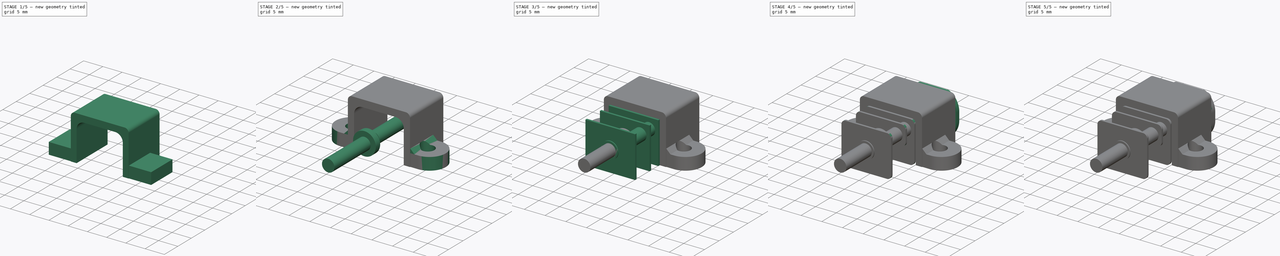
[diagram: build sequence overview — one tinted view per stage of 5, left to right]
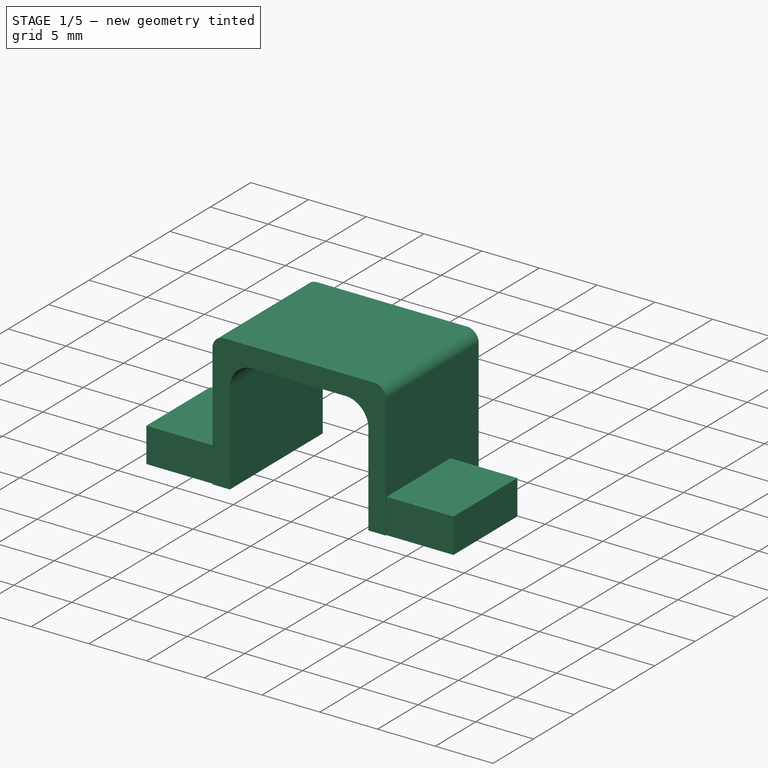
[diagram: stage 1 of 5 — iso view after this stage's code; geometry added in this stage tinted green]
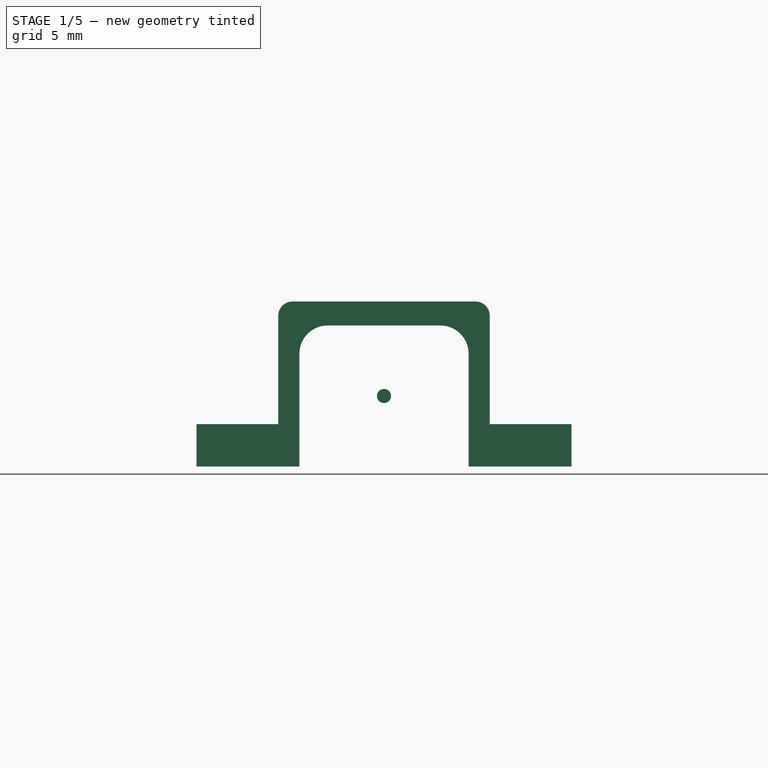
[diagram: stage 1 of 5 — front view after this stage's code; geometry added in this stage tinted green]
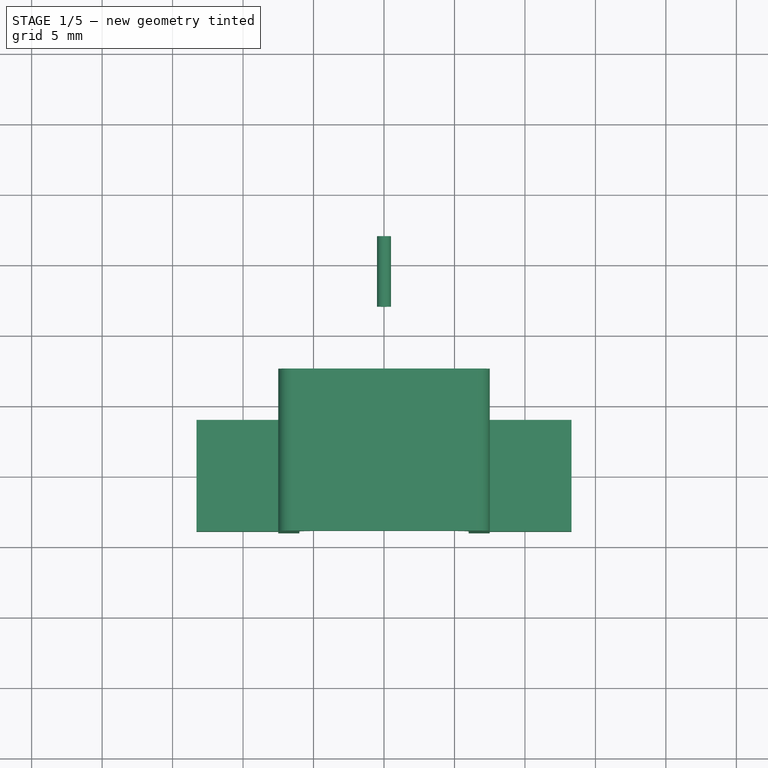
[diagram: stage 1 of 5 — top view after this stage's code; geometry added in this stage tinted green]
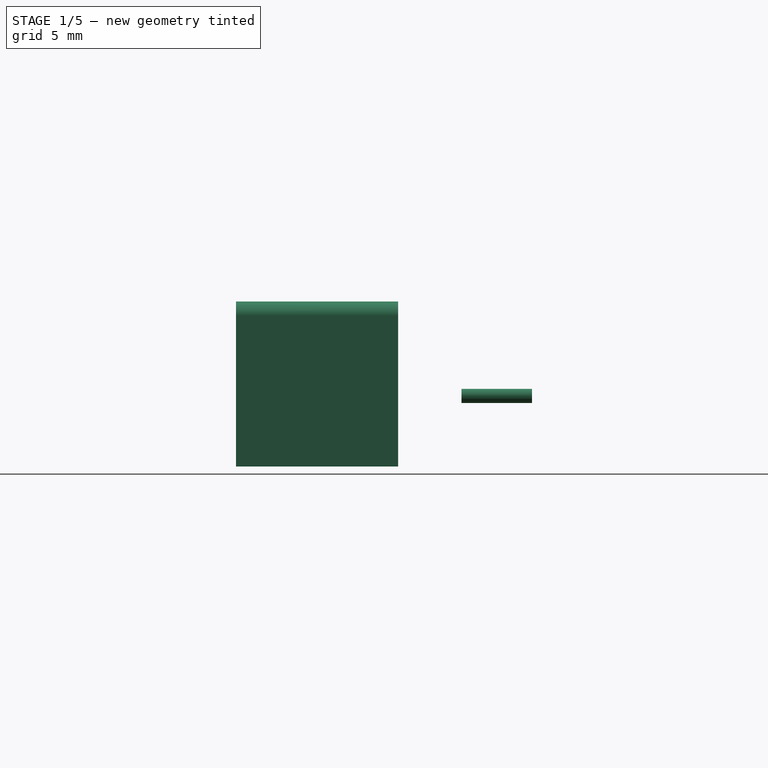
[diagram: stage 1 of 5 — right view after this stage's code; geometry added in this stage tinted green]
FCSTD DOCUMENT  (FreeCAD 0.19R24276 (Git))
Label: Std_MicroMotor
License: All rights reserved
LicenseURL: http://en.wikipedia.org/wiki/All_rights_reserved
objects: Sketcher::SketchObject×22, PartDesign::Pad×15, PartDesign::Pocket×7, PartDesign::Body×7, PartDesign::Plane×7, PartDesign::Fillet×4, PartDesign::Chamfer×1, PartDesign::ShapeBinder×1, App::Part×1
note: 91 computed .brp shape members not serialized (recipe doc carries the construction recipe); baked Part::Feature solids carry a one-line shape summary decoded from their .brp

FEATURE [PartDesign::Body] Body004  label="WheelShaft"
  Group = -> [DatumPlane004,Sketch016,Pad010,Sketch017,Pad011]
  Origin = -> Origin005
  Tip = -> Pad011
FEATURE [PartDesign::Plane] DatumPlane005
  AttachmentOffset = pos=(0,0,2.5) rot=(0,0,1;0rad)
  Length = 60
  MapMode = 5
  Placement = pos=(0,-2.5,-6e-16) rot=(1,0,0;1.5708rad)
  ResizeMode = 0
  Support = -> [XZ_Plane006]
  Width = 60
FEATURE [Sketcher::SketchObject] Sketch018
  FullyConstrained = true
  MapMode = 5
  Placement = pos=(0,-2.5,-6e-16) rot=(1,0,0;1.5708rad)
  Support = -> [DatumPlane005]
  sketch-geometry (9):
    g0: LineSegment StartX=-7.5 StartY=-5 StartZ=0 EndX=-7.5 EndY=6.7 EndZ=0
    g1: LineSegment StartX=-7.5 StartY=6.7 StartZ=0 EndX=7.5 EndY=6.7 EndZ=0
    g2: LineSegment StartX=7.5 StartY=6.7 StartZ=0 EndX=7.5 EndY=-5 EndZ=0
    g3: LineSegment StartX=7.5 StartY=-5 StartZ=0 EndX=6 EndY=-5 EndZ=0
    g4: LineSegment StartX=6 StartY=-5 StartZ=0 EndX=6 EndY=5 EndZ=0
    g5: LineSegment StartX=6 StartY=5 StartZ=0 EndX=-6 EndY=5 EndZ=0
    g6: LineSegment StartX=-6 StartY=5 StartZ=0 EndX=-6 EndY=-5 EndZ=0
    g7: LineSegment StartX=-6 StartY=-5 StartZ=0 EndX=-7.5 EndY=-5 EndZ=0
    g8: LineSegment StartX=0 StartY=0 StartZ=0 EndX=0 EndY=5 EndZ=0
  constraints (26):
    c: Vertical(g0)
    c: Coincident(g1,g0)
    c: Horizontal(g1)
    c: Coincident(g2,g1)
    c: Vertical(g2)
    c: Coincident(g3,g2)
    c: Horizontal(g3)
    c: Coincident(g4,g3)
    c: Vertical(g4)
    c: Coincident(g5,g4)
    c: Horizontal(g5)
    c: Coincident(g6,g5)
    c: Vertical(g6)
    c: Coincident(g7,g6)
    c: Coincident(g7,g0)
    c: Horizontal(g7)
    c: Equal(g0,g2)
    c: Equal(g3,g7)
    c: Coincident(g8,g-1)
    c: PointOnObject(g8,g-2)
    c: Symmetric(g5,g4,g8)
    c: DistanceX(g0,g1) = 15
    c: DistanceY(g2,g1) = 11.7
    c: DistanceX(g5,g4) = 12
    c: DistanceY(g6,g5) = 10
    c: Distance(g8) = 5
FEATURE [PartDesign::Pad] Pad012
  Direction = (1,1,1)
  Length = 11.5
  Length2 = 100
  Placement = pos=(0,-2.5,1e-15) rot=(1,0,0;1.5708rad)
  Profile = -> Sketch018
  Type = 0
FEATURE [PartDesign::Fillet] Fillet001
  Base = -> Pad012 [Edge2,Edge5]
  BaseFeature = -> Pad012
  Placement = pos=(0,-2.5,1e-15) rot=(1,0,0;1.5708rad)
  Radius = 1
  SupportTransform = false
FEATURE [PartDesign::Fillet] Fillet002
  Base = -> Fillet001 [Edge28,Edge26]
  BaseFeature = -> Fillet001
  Placement = pos=(0,-2.5,1e-15) rot=(1,0,0;1.5708rad)
  Radius = 2
  SupportTransform = false
FEATURE [PartDesign::Plane] DatumPlane006
  AttachmentOffset = pos=(0,0,-5) rot=(0,0,1;0rad)
  Length = 60
  MapMode = 5
  Placement = pos=(0,0,-5) rot=(0,0,1;0rad)
  ResizeMode = 0
  Support = -> [XY_Plane006]
  Width = 60
FEATURE [Sketcher::SketchObject] Sketch019
  FullyConstrained = true
  MapMode = 5
  Placement = pos=(0,0,-5) rot=(0,0,1;0rad)
  Support = -> [DatumPlane006]
  sketch-geometry (10):
    g0: LineSegment StartX=7.5 StartY=-6 StartZ=0 EndX=13.3 EndY=-6 EndZ=0
    g1: LineSegment StartX=13.3 StartY=-6 StartZ=0 EndX=13.3 EndY=-13.9 EndZ=0
    g2: LineSegment StartX=13.3 StartY=-13.9 StartZ=0 EndX=7.5 EndY=-13.9 EndZ=0
    g3: LineSegment StartX=7.5 StartY=-13.9 StartZ=0 EndX=7.5 EndY=-6 EndZ=0
    g4: LineSegment StartX=-13.3 StartY=-6 StartZ=0 EndX=-7.5 EndY=-6 EndZ=0
    g5: LineSegment StartX=-7.5 StartY=-6 StartZ=0 EndX=-7.5 EndY=-13.9 EndZ=0
    g6: LineSegment StartX=-7.5 StartY=-13.9 StartZ=0 EndX=-13.3 EndY=-13.9 EndZ=0
    g7: LineSegment StartX=-13.3 StartY=-13.9 StartZ=0 EndX=-13.3 EndY=-6 EndZ=0
    g8: LineSegment StartX=0 StartY=0 StartZ=0 EndX=0 EndY=-13.9 EndZ=0
    g9: LineSegment StartX=-7.5 StartY=-13.9 StartZ=0 EndX=7.5 EndY=-13.9 EndZ=0
  constraints (28):
    c: Coincident(g0,g1)
    c: Coincident(g1,g2)
    c: Coincident(g2,g3)
    c: Coincident(g3,g0)
    c: Horizontal(g0)
    c: Horizontal(g2)
    c: Vertical(g1)
    c: Vertical(g3)
    c: Coincident(g4,g5)
    c: Coincident(g5,g6)
    c: Coincident(g6,g7)
    c: Coincident(g7,g4)
    c: Horizontal(g4)
    c: Horizontal(g6)
    c: Vertical(g5)
    c: Vertical(g7)
    c: Equal(g4,g0)
    c: Equal(g7,g1)
    c: Coincident(g8,g-1)
    c: PointOnObject(g8,g-2)
    c: Distance(g7) = 7.9
    c: Distance(g4) = 5.8
    c: DistanceX(g4,g0) = 15
    c: Coincident(g9,g5)
    c: Coincident(g9,g2)
    c: Horizontal(g9)
    c: Symmetric(g5,g2,g8)
    c: Distance(g8) = 13.9
FEATURE [PartDesign::Pad] Pad013
  BaseFeature = -> Fillet002
  Direction = (1,1,1)
  Length = 3
  Length2 = 100
  Placement = pos=(0,-2.5,1e-15) rot=(1,0,0;1.5708rad)
  Profile = -> Sketch019
  Type = 0
FEATURE [PartDesign::Body] Body005  label="MountBracket"
  Group = -> [DatumPlane005,Sketch018,Pad012,Fillet001,Fillet002,DatumPlane006,Sketch019,Pad013,Chamfer,Fillet003,Sketch020,Pocket006]
  Origin = -> Origin006
  Tip = -> Pocket006
FEATURE [PartDesign::ShapeBinder] CopyPad009
  Placement = pos=(0,0,4e-16) rot=(0,0,1;0rad)
  TraceSupport = false
FEATURE [Sketcher::SketchObject] Sketch021
  FullyConstrained = true
  MapMode = 5
  Placement = pos=(1e-16,2,-5e-16) rot=(0,0.707107,0.707107;3.14159rad)
  Support = -> [CopyPad009]
  sketch-geometry (1):
    g0: Circle CenterX=0 CenterY=0 CenterZ=0 NormalX=0 NormalY=0 NormalZ=1 AngleXU=0 Radius=0.5
  constraints (2):
    c: Coincident(g0,g-1)
    c: Diameter(g0) = 1
FEATURE [PartDesign::Pad] Pad014
  Direction = (1,1,1)
  Length = 5
  Length2 = 100
  Placement = pos=(0,0,4e-16) rot=(0,0,1;0rad)
  Profile = -> Sketch021
  Type = 0
FEATURE [PartDesign::Body] Body006  label="ExtendedBackShaft"
  Group = -> [CopyPad009,Sketch021,Pad014]
  Origin = -> Origin007
  Tip = -> Pad014
FEATURE [App::Part] Part  label="AB2_MotorAssembly"
  Group = -> [Body,Body001,Body002,Body003,Body004,Body005,Body006]
  Origin = -> Origin001
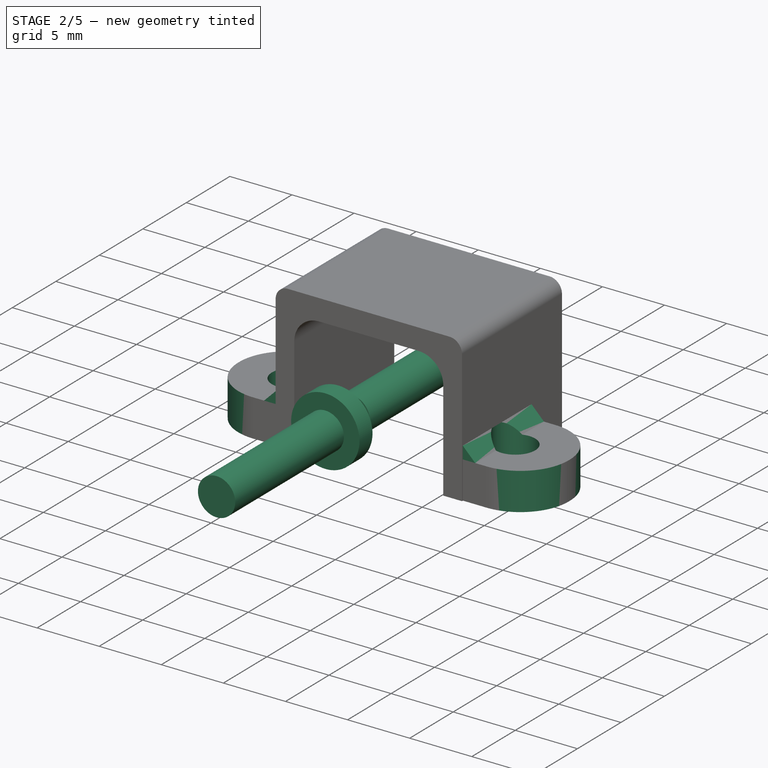
[diagram: stage 2 of 5 — iso view after this stage's code; geometry added in this stage tinted green]
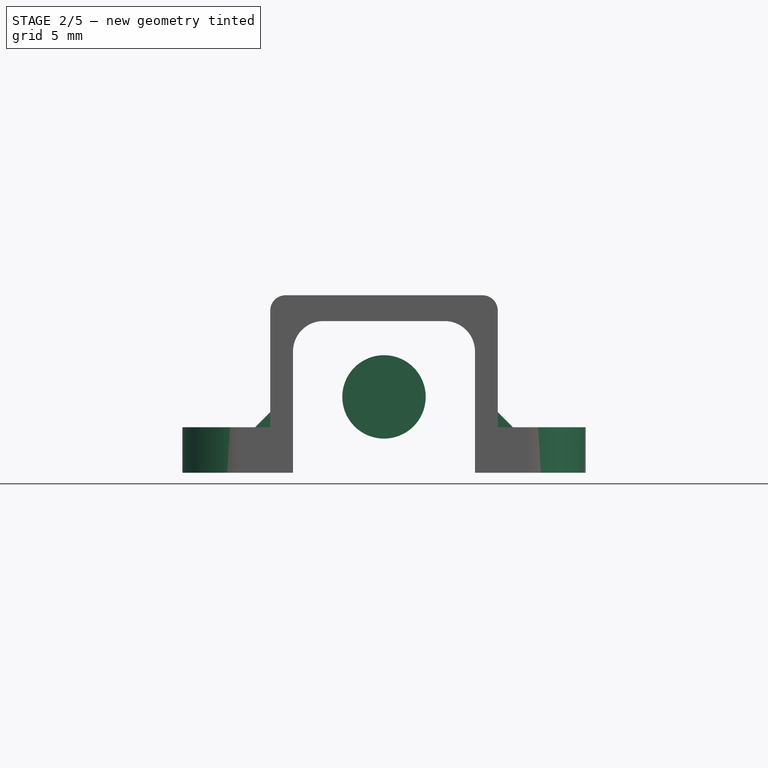
[diagram: stage 2 of 5 — front view after this stage's code; geometry added in this stage tinted green]
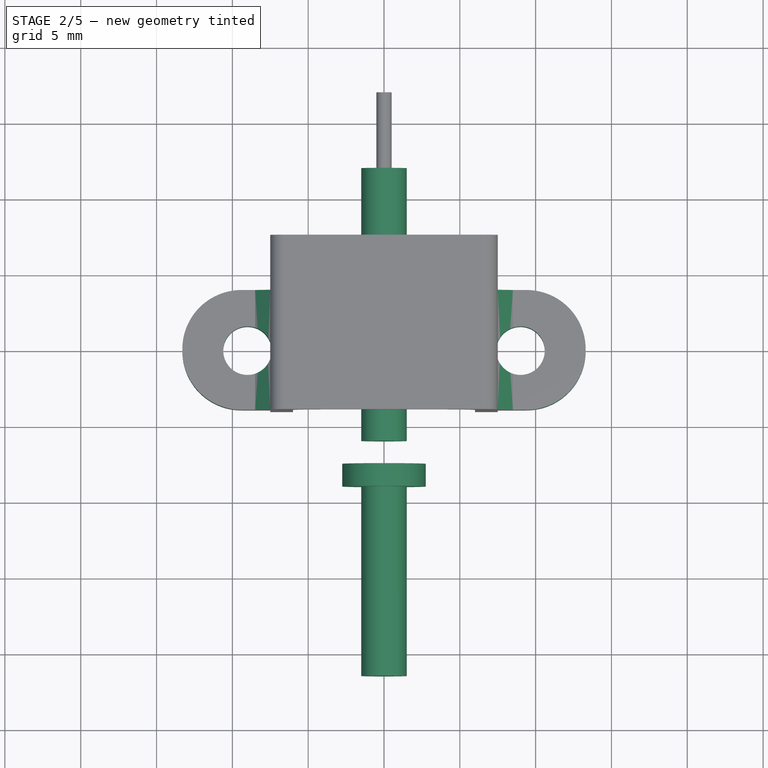
[diagram: stage 2 of 5 — top view after this stage's code; geometry added in this stage tinted green]
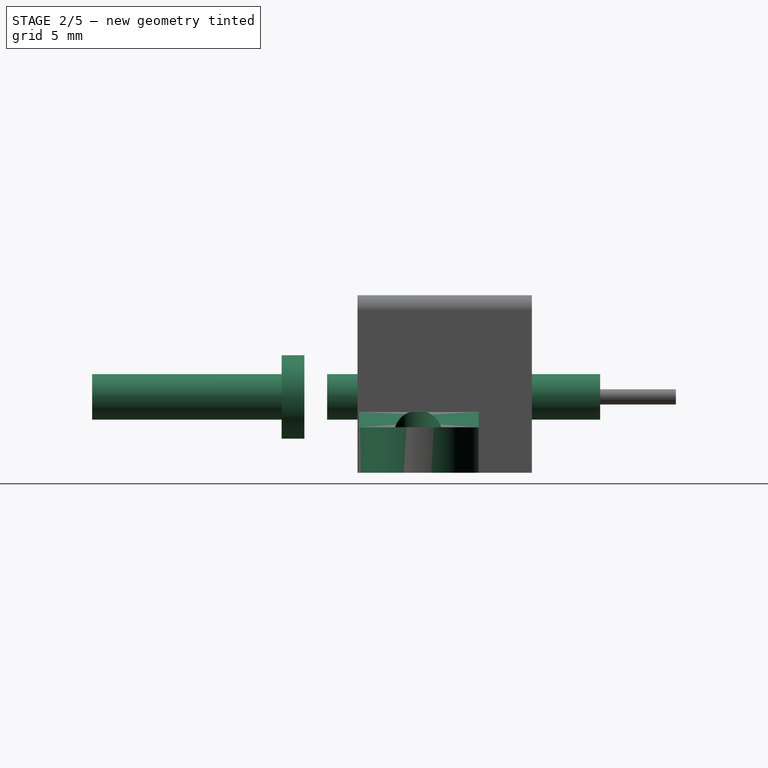
[diagram: stage 2 of 5 — right view after this stage's code; geometry added in this stage tinted green]
FEATURE [PartDesign::Body] Body002  label="GearPlates"
  Group = -> [DatumPlane,Sketch006,Pad003,Sketch007,Pad004,DatumPlane001,Sketch008,Pad005,DatumPlane002,Sketch009,Pad006,Sketch010,Pad007,Sketch011,Pad008,Sketch012,Pocket003,Sketch013,Pocket004,Fillet,Sketch014,Pocket005]
  Origin = -> Origin003
  Tip = -> Pocket005
FEATURE [PartDesign::Plane] DatumPlane003
  AttachmentOffset = pos=(0,0,-2) rot=(0,0,1;0rad)
  Length = 60
  MapMode = 5
  Placement = pos=(0,2,4e-16) rot=(1,0,0;1.5708rad)
  ResizeMode = 0
  Support = -> [XZ_Plane004]
  Width = 60
FEATURE [Sketcher::SketchObject] Sketch015
  FullyConstrained = true
  MapMode = 5
  Placement = pos=(0,2,4e-16) rot=(1,0,0;1.5708rad)
  Support = -> [DatumPlane003]
  sketch-geometry (1):
    g0: Circle CenterX=0 CenterY=0 CenterZ=0 NormalX=0 NormalY=0 NormalZ=1 AngleXU=0 Radius=1.5
  constraints (2):
    c: Coincident(g0,g-1)
    c: Diameter(g0) = 3
FEATURE [PartDesign::Pad] Pad009
  Direction = (1,1,1)
  Length = 18
  Length2 = 100
  Placement = pos=(0,2,0) rot=(1,0,0;1.5708rad)
  Profile = -> Sketch015
  Type = 0
FEATURE [PartDesign::Body] Body003  label="MotorShaft"
  Group = -> [DatumPlane003,Sketch015,Pad009]
  Origin = -> Origin004
  Tip = -> Pad009
FEATURE [PartDesign::Plane] DatumPlane004
  AttachmentOffset = pos=(0,0,17.5) rot=(0,0,1;0rad)
  Length = 60
  MapMode = 5
  Placement = pos=(0,-17.5,-3.9e-15) rot=(1,0,0;1.5708rad)
  ResizeMode = 0
  Support = -> [XZ_Plane005]
  Width = 60
FEATURE [Sketcher::SketchObject] Sketch016
  FullyConstrained = true
  MapMode = 5
  Placement = pos=(0,-17.5,-3.9e-15) rot=(1,0,0;1.5708rad)
  Support = -> [DatumPlane004]
  sketch-geometry (1):
    g0: Circle CenterX=0 CenterY=0 CenterZ=0 NormalX=0 NormalY=0 NormalZ=1 AngleXU=0 Radius=1.5
  constraints (2):
    c: Coincident(g0,g-1)
    c: Diameter(g0) = 3
FEATURE [PartDesign::Pad] Pad010
  Direction = (1,1,1)
  Length = 14
  Length2 = 100
  Placement = pos=(0,-17.5,4e-15) rot=(1,0,0;1.5708rad)
  Profile = -> Sketch016
  Type = 0
FEATURE [Sketcher::SketchObject] Sketch017
  FullyConstrained = true
  MapMode = 5
  Placement = pos=(0,-17.5,-3.9e-15) rot=(1,0,0;1.5708rad)
  Support = -> [DatumPlane004]
  sketch-geometry (1):
    g0: Circle CenterX=0 CenterY=0 CenterZ=0 NormalX=0 NormalY=0 NormalZ=1 AngleXU=0 Radius=2.75
  constraints (2):
    c: Coincident(g0,g-1)
    c: Diameter(g0) = 5.5
FEATURE [PartDesign::Pad] Pad011
  BaseFeature = -> Pad010
  Direction = (1,1,1)
  Length = 1.5
  Length2 = 100
  Placement = pos=(0,-17.5,4e-15) rot=(1,0,0;1.5708rad)
  Profile = -> Sketch017
  Type = 0
FEATURE [PartDesign::Chamfer] Chamfer
  Angle = 45
  Base = -> Pad013 [Edge44,Edge27]
  BaseFeature = -> Pad013
  ChamferType = 0
  FlipDirection = false
  Placement = pos=(0,-2.5,1e-15) rot=(1,0,0;1.5708rad)
  Size = 1
  Size2 = 1
  SupportTransform = false
FEATURE [PartDesign::Fillet] Fillet003
  Base = -> Chamfer [Edge71,Edge67,Edge22,Edge13]
  BaseFeature = -> Chamfer
  Placement = pos=(0,-2.5,1e-15) rot=(1,0,0;1.5708rad)
  Radius = 3.9
  SupportTransform = false
FEATURE [Sketcher::SketchObject] Sketch020
  FullyConstrained = true
  MapMode = 5
  Placement = pos=(0,0,-5) rot=(0,0,1;0rad)
  Support = -> [DatumPlane006]
  sketch-geometry (4):
    g0: Circle CenterX=-9 CenterY=-10 CenterZ=0 NormalX=0 NormalY=0 NormalZ=1 AngleXU=0 Radius=1.6
    g1: Circle CenterX=9 CenterY=-10 CenterZ=0 NormalX=0 NormalY=0 NormalZ=1 AngleXU=0 Radius=1.6
    g2: LineSegment StartX=0 StartY=0 StartZ=0 EndX=0 EndY=-10 EndZ=0
    g3: LineSegment StartX=-9 StartY=-10 StartZ=0 EndX=9 EndY=-10 EndZ=0
  constraints (10):
    c: Coincident(g2,g-1)
    c: PointOnObject(g2,g-2)
    c: Horizontal(g3)
    c: Coincident(g0,g3)
    c: Coincident(g3,g1)
    c: Symmetric(g0,g1,g2)
    c: Equal(g0,g1)
    c: Diameter(g1) = 3.2
    c: Distance(g2) = 10
    c: Distance(g3) = 18
FEATURE [PartDesign::Pocket] Pocket006
  BaseFeature = -> Fillet003
  Length = 4
  Length2 = 100
  Placement = pos=(0,-2.5,1e-15) rot=(1,0,0;1.5708rad)
  Profile = -> Sketch020
  Reversed = true
  Type = 0
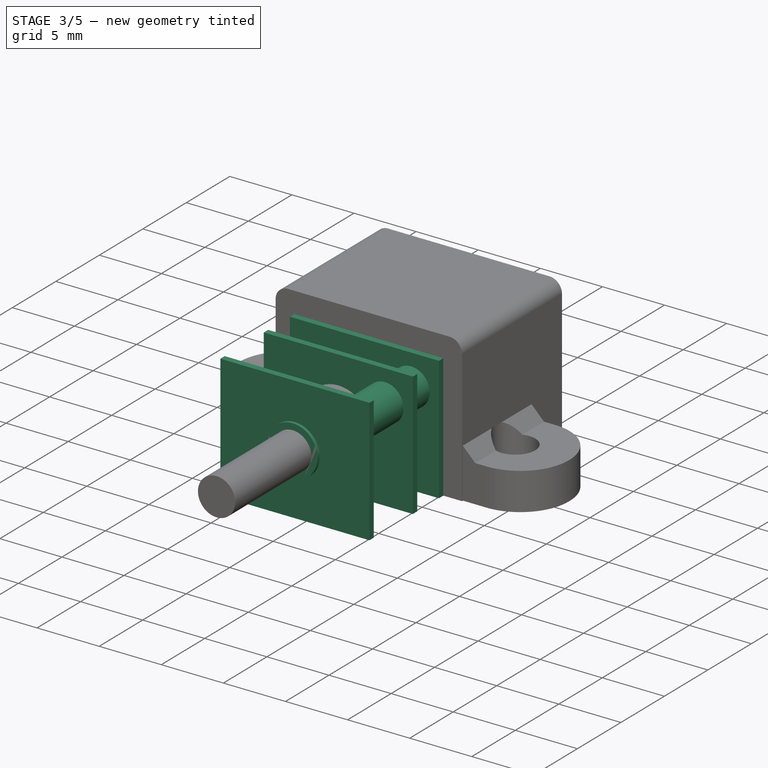
[diagram: stage 3 of 5 — iso view after this stage's code; geometry added in this stage tinted green]
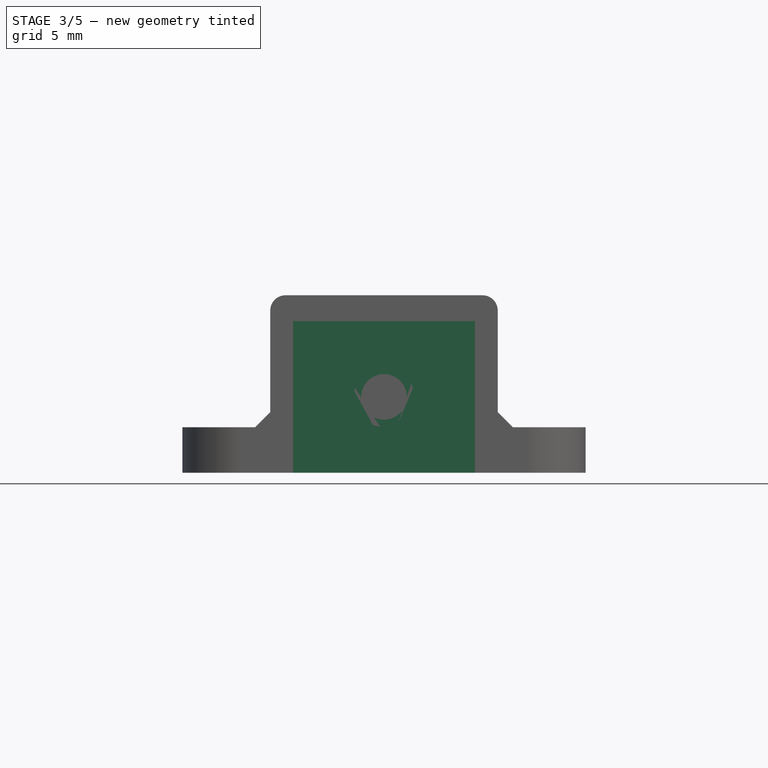
[diagram: stage 3 of 5 — front view after this stage's code; geometry added in this stage tinted green]
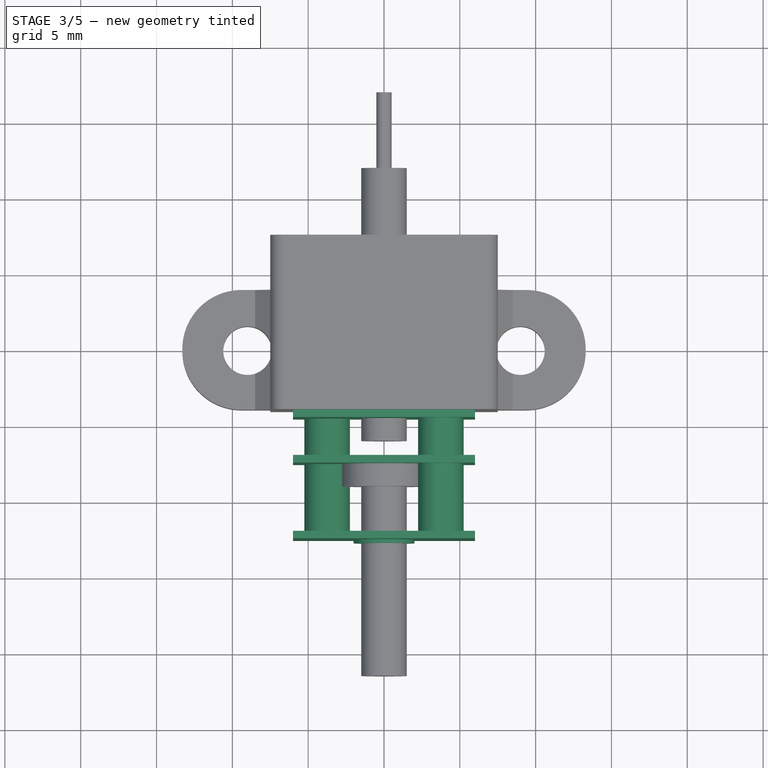
[diagram: stage 3 of 5 — top view after this stage's code; geometry added in this stage tinted green]
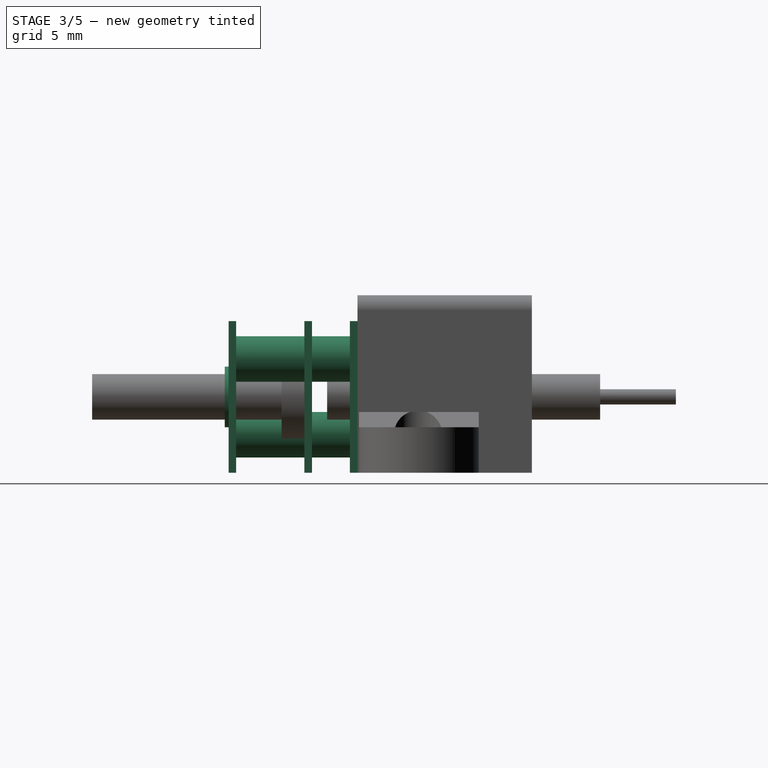
[diagram: stage 3 of 5 — right view after this stage's code; geometry added in this stage tinted green]
FEATURE [PartDesign::Body] Body001  label="BackPlate"
  Group = -> [Sketch003,Pad001,Sketch004,Pad002,Sketch005,Pocket002]
  Origin = -> Origin002
  Tip = -> Pocket002
FEATURE [PartDesign::Plane] DatumPlane
  AttachmentOffset = pos=(0,0,14) rot=(0,0,1;0rad)
  Length = 60
  MapMode = 2
  Placement = pos=(0,-14,-3.1e-15) rot=(1,0,0;1.5708rad)
  ResizeMode = 0
  Support = -> [XZ_Plane003]
  Width = 60
FEATURE [Sketcher::SketchObject] Sketch006
  FullyConstrained = true
  MapMode = 5
  Placement = pos=(0,-14,-3.1e-15) rot=(1,0,0;1.5708rad)
  Support = -> [DatumPlane]
  sketch-geometry (6):
    g0: LineSegment StartX=-6 StartY=5 StartZ=0 EndX=6 EndY=5 EndZ=0
    g1: LineSegment StartX=6 StartY=5 StartZ=0 EndX=6 EndY=-5 EndZ=0
    g2: LineSegment StartX=6 StartY=-5 StartZ=0 EndX=-6 EndY=-5 EndZ=0
    g3: LineSegment StartX=-6 StartY=-5 StartZ=0 EndX=-6 EndY=5 EndZ=0
    g4: LineSegment StartX=0 StartY=0 StartZ=0 EndX=0 EndY=5 EndZ=0
    g5: LineSegment StartX=0 StartY=0 StartZ=0 EndX=6 EndY=-2e-16 EndZ=0
  constraints (16):
    c: Coincident(g0,g1)
    c: Coincident(g1,g2)
    c: Coincident(g2,g3)
    c: Coincident(g3,g0)
    c: Horizontal(g0)
    c: Horizontal(g2)
    c: Vertical(g1)
    c: Vertical(g3)
    c: Coincident(g4,g-1)
    c: PointOnObject(g4,g-2)
    c: Coincident(g5,g-1)
    c: PointOnObject(g5,g-1)
    c: Symmetric(g0,g0,g4)
    c: Symmetric(g0,g1,g5)
    c: Distance(g0) = 12
    c: Distance(g1) = 10
FEATURE [PartDesign::Pad] Pad003
  Direction = (1,1,1)
  Length = 0.5
  Length2 = 100
  Placement = pos=(0,-14,3e-15) rot=(1,0,0;1.5708rad)
  Profile = -> Sketch006
  Type = 0
FEATURE [Sketcher::SketchObject] Sketch007
  FullyConstrained = true
  MapMode = 5
  Placement = pos=(0,-14.5,3.3e-15) rot=(1,0,0;1.5708rad)
  Support = -> [Pad003]
  sketch-geometry (8):
    g0: Circle CenterX=3.75 CenterY=2.5 CenterZ=0 NormalX=0 NormalY=0 NormalZ=1 AngleXU=0 Radius=1.5
    g1: Circle CenterX=-3.75 CenterY=-2.5 CenterZ=0 NormalX=0 NormalY=0 NormalZ=1 AngleXU=0 Radius=1.5
    g2: LineSegment StartX=-3.75 StartY=2.5 StartZ=0 EndX=3.75 EndY=2.5 EndZ=0
    g3: LineSegment StartX=3.75 StartY=2.5 StartZ=0 EndX=3.75 EndY=-2.5 EndZ=0
    g4: LineSegment StartX=3.75 StartY=-2.5 StartZ=0 EndX=-3.75 EndY=-2.5 EndZ=0
    g5: LineSegment StartX=-3.75 StartY=-2.5 StartZ=0 EndX=-3.75 EndY=2.5 EndZ=0
    g6: LineSegment StartX=0 StartY=0 StartZ=0 EndX=0 EndY=2.5 EndZ=0
    g7: LineSegment StartX=0 StartY=0 StartZ=0 EndX=3.75 EndY=0 EndZ=0
  constraints (20):
    c: Equal(g0,g1)
    c: Diameter(g0) = 3
    c: Coincident(g2,g3)
    c: Coincident(g3,g4)
    c: Coincident(g4,g5)
    c: Coincident(g5,g2)
    c: Horizontal(g2)
    c: Horizontal(g4)
    c: Vertical(g3)
    c: Vertical(g5)
    c: Coincident(g6,g-1)
    c: Coincident(g7,g-1)
    c: Horizontal(g7)
    c: Vertical(g6)
    c: Symmetric(g2,g2,g6)
    c: Symmetric(g2,g3,g7)
    c: Coincident(g0,g2)
    c: Coincident(g1,g4)
    c: DistanceX(g2,g0) = 7.5
    c: DistanceY(g3,g0) = 5
FEATURE [PartDesign::Pad] Pad004
  BaseFeature = -> Pad003
  Direction = (1,1,1)
  Length = 7.7
  Length2 = 100
  Placement = pos=(0,-14,3e-15) rot=(1,0,0;1.5708rad)
  Profile = -> Sketch007
  Type = 0
FEATURE [PartDesign::Plane] DatumPlane001
  AttachmentOffset = pos=(0,0,17) rot=(0,0,1;0rad)
  Length = 60
  MapMode = 5
  Placement = pos=(0,-17,-3.8e-15) rot=(1,0,0;1.5708rad)
  ResizeMode = 0
  Support = -> [XZ_Plane003]
  Width = 60
FEATURE [Sketcher::SketchObject] Sketch008
  FullyConstrained = true
  MapMode = 5
  Placement = pos=(0,-17,-3.8e-15) rot=(1,0,0;1.5708rad)
  Support = -> [DatumPlane001]
  sketch-geometry (6):
    g0: LineSegment StartX=-6 StartY=5 StartZ=0 EndX=6 EndY=5 EndZ=0
    g1: LineSegment StartX=6 StartY=5 StartZ=0 EndX=6 EndY=-5 EndZ=0
    g2: LineSegment StartX=6 StartY=-5 StartZ=0 EndX=-6 EndY=-5 EndZ=0
    g3: LineSegment StartX=-6 StartY=-5 StartZ=0 EndX=-6 EndY=5 EndZ=0
    g4: LineSegment StartX=0 StartY=0 StartZ=0 EndX=0 EndY=5 EndZ=0
    g5: LineSegment StartX=0 StartY=0 StartZ=0 EndX=6 EndY=1e-16 EndZ=0
  constraints (16):
    c: Coincident(g0,g1)
    c: Coincident(g1,g2)
    c: Coincident(g2,g3)
    c: Coincident(g3,g0)
    c: Horizontal(g0)
    c: Horizontal(g2)
    c: Vertical(g1)
    c: Vertical(g3)
    c: Coincident(g4,g-1)
    c: PointOnObject(g4,g-2)
    c: Coincident(g5,g-1)
    c: PointOnObject(g5,g-1)
    c: Symmetric(g0,g0,g4)
    c: Symmetric(g0,g1,g5)
    c: Distance(g0) = 12
    c: Distance(g1) = 10
FEATURE [PartDesign::Pad] Pad005
  BaseFeature = -> Pad004
  Direction = (1,1,1)
  Length = 0.5
  Length2 = 100
  Placement = pos=(0,-14,3e-15) rot=(1,0,0;1.5708rad)
  Profile = -> Sketch008
  Type = 0
FEATURE [PartDesign::Plane] DatumPlane002
  AttachmentOffset = pos=(0,0,22) rot=(0,0,1;0rad)
  Length = 60
  MapMode = 5
  Placement = pos=(0,-22,-4.9e-15) rot=(1,0,0;1.5708rad)
  ResizeMode = 0
  Support = -> [XZ_Plane003]
  Width = 60
FEATURE [Sketcher::SketchObject] Sketch009
  FullyConstrained = true
  MapMode = 5
  Placement = pos=(0,-22,-4.9e-15) rot=(1,0,0;1.5708rad)
  Support = -> [DatumPlane002]
  sketch-geometry (6):
    g0: LineSegment StartX=0 StartY=0 StartZ=0 EndX=0 EndY=5 EndZ=0
    g1: LineSegment StartX=0 StartY=0 StartZ=0 EndX=6 EndY=0 EndZ=0
    g2: LineSegment StartX=-6 StartY=5 StartZ=0 EndX=6 EndY=5 EndZ=0
    g3: LineSegment StartX=6 StartY=5 StartZ=0 EndX=6 EndY=-5 EndZ=0
    g4: LineSegment StartX=6 StartY=-5 StartZ=0 EndX=-6 EndY=-5 EndZ=0
    g5: LineSegment StartX=-6 StartY=-5 StartZ=0 EndX=-6 EndY=5 EndZ=0
  constraints (16):
    c: Coincident(g0,g-1)
    c: Coincident(g1,g-1)
    c: Horizontal(g1)
    c: Vertical(g0)
    c: Coincident(g2,g3)
    c: Coincident(g3,g4)
    c: Coincident(g4,g5)
    c: Coincident(g5,g2)
    c: Horizontal(g2)
    c: Horizontal(g4)
    c: Vertical(g3)
    c: Vertical(g5)
    c: Symmetric(g2,g2,g0)
    c: Symmetric(g2,g3,g1)
    c: Distance(g2) = 12
    c: Distance(g3) = 10
FEATURE [PartDesign::Pad] Pad006
  BaseFeature = -> Pad005
  Direction = (1,1,1)
  Length = 0.5
  Length2 = 100
  Placement = pos=(0,-14,3e-15) rot=(1,0,0;1.5708rad)
  Profile = -> Sketch009
  Type = 0
FEATURE [Sketcher::SketchObject] Sketch010
  FullyConstrained = true
  MapMode = 5
  Placement = pos=(0,-22.5,4.9e-15) rot=(1,0,0;1.5708rad)
  Support = -> [Pad006]
  sketch-geometry (1):
    g0: Circle CenterX=0 CenterY=0 CenterZ=0 NormalX=0 NormalY=0 NormalZ=1 AngleXU=0 Radius=2
  constraints (2):
    c: Coincident(g0,g-1)
    c: Diameter(g0) = 4
FEATURE [PartDesign::Pad] Pad007
  BaseFeature = -> Pad006
  Direction = (1,1,1)
  Length = 0.25
  Length2 = 100
  Placement = pos=(0,-14,3e-15) rot=(1,0,0;1.5708rad)
  Profile = -> Sketch010
  Type = 0
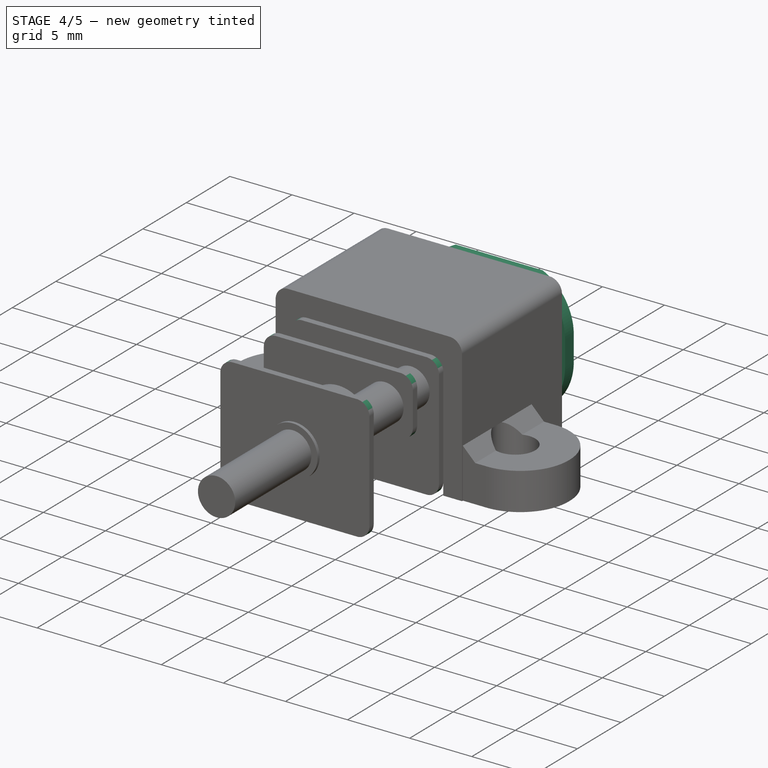
[diagram: stage 4 of 5 — iso view after this stage's code; geometry added in this stage tinted green]
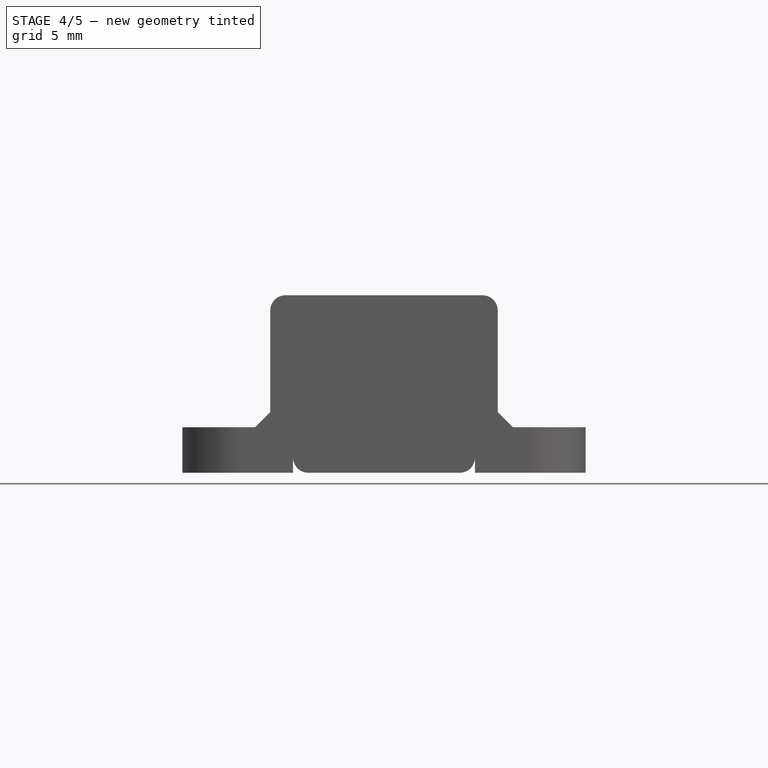
[diagram: stage 4 of 5 — front view after this stage's code; geometry added in this stage tinted green]
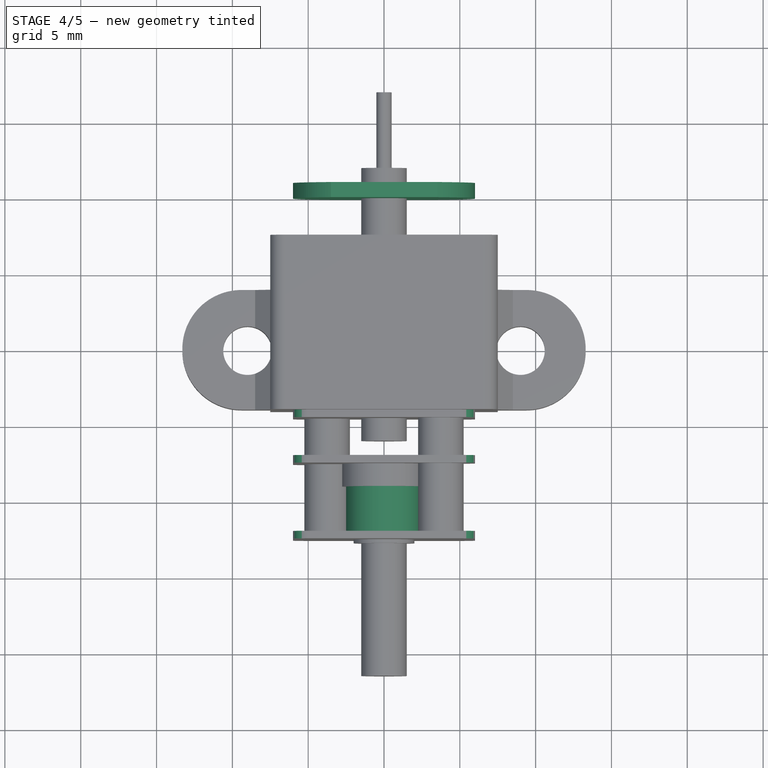
[diagram: stage 4 of 5 — top view after this stage's code; geometry added in this stage tinted green]
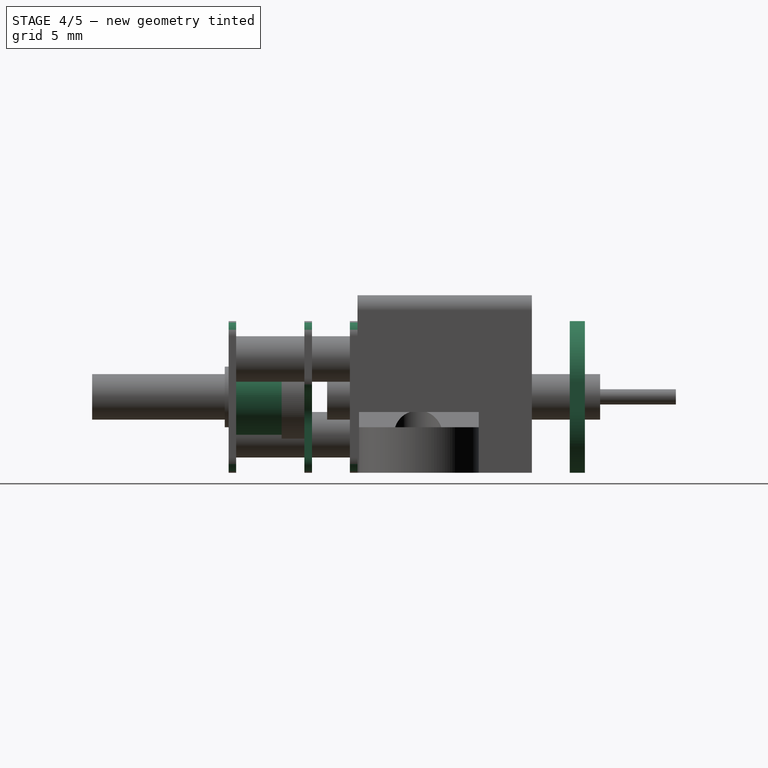
[diagram: stage 4 of 5 — right view after this stage's code; geometry added in this stage tinted green]
FEATURE [PartDesign::Body] Body  label="MotorShell"
  Group = -> [Sketch,Pad,Sketch001,Pocket,Sketch002,Pocket001]
  Origin = -> Origin
  Tip = -> Pocket001
FEATURE [Sketcher::SketchObject] Sketch003
  FullyConstrained = true
  MapMode = 5
  Placement = pos=(0,0,0) rot=(1,0,0;1.5708rad)
  Support = -> [XZ_Plane002]
  sketch-geometry (12):
    g0: LineSegment StartX=-3.5 StartY=5 StartZ=0 EndX=3.5 EndY=5 EndZ=0
    g1: LineSegment StartX=6 StartY=1 StartZ=0 EndX=6 EndY=-1 EndZ=0
    g2: LineSegment StartX=3.5 StartY=-5 StartZ=0 EndX=-3.5 EndY=-5 EndZ=0
    g3: LineSegment StartX=-6 StartY=-1 StartZ=0 EndX=-6 EndY=1 EndZ=0
    g4: LineSegment StartX=0 StartY=0 StartZ=0 EndX=-6 EndY=0 EndZ=0
    g5: LineSegment StartX=0 StartY=0 StartZ=0 EndX=6 EndY=0 EndZ=0
    g6: LineSegment StartX=0 StartY=0 StartZ=0 EndX=0 EndY=5 EndZ=0
    g7: LineSegment StartX=0 StartY=0 StartZ=0 EndX=0 EndY=-5 EndZ=0
    g8: ArcOfCircle CenterX=-1.55 CenterY=1 CenterZ=0 NormalX=0 NormalY=0 NormalZ=1 AngleXU=0 Radius=4.45 StartAngle=2.02439 EndAngle=3.14159
    g9: ArcOfCircle CenterX=1.55 CenterY=1 CenterZ=0 NormalX=0 NormalY=0 NormalZ=1 AngleXU=0 Radius=4.45 StartAngle=6.28319 EndAngle=7.40038
    g10: ArcOfCircle CenterX=1.55 CenterY=-1 CenterZ=0 NormalX=0 NormalY=0 NormalZ=1 AngleXU=0 Radius=4.45 StartAngle=5.16599 EndAngle=6.28319
    g11: ArcOfCircle CenterX=-1.55 CenterY=-1 CenterZ=0 NormalX=0 NormalY=0 NormalZ=1 AngleXU=0 Radius=4.45 StartAngle=3.14159 EndAngle=4.25879
  constraints (36):
    c: Coincident(g4,g-1)
    c: PointOnObject(g4,g-1)
    c: Coincident(g5,g-1)
    c: PointOnObject(g5,g-1)
    c: Coincident(g6,g-1)
    c: PointOnObject(g6,g-2)
    c: Coincident(g7,g-1)
    c: PointOnObject(g7,g-2)
    c: Equal(g4,g5)
    c: Equal(g7,g6)
    c: Equal(g0,g2)
    c: Equal(g1,g3)
    c: Vertical(g3)
    c: Vertical(g1)
    c: Horizontal(g0)
    c: Horizontal(g2)
    c: Symmetric(g3,g3,g4)
    c: Symmetric(g1,g1,g5)
    c: Symmetric(g0,g0,g6)
    c: Symmetric(g2,g2,g7)
    c: Coincident(g8,g3)
    c: Coincident(g8,g0)
    c: Coincident(g9,g0)
    c: Coincident(g9,g1)
    c: Coincident(g10,g1)
    c: Coincident(g10,g2)
    c: Coincident(g11,g2)
    c: Coincident(g11,g3)
    c: Tangent(g8,g3)
    c: Tangent(g3,g11)
    c: Tangent(g10,g1)
    c: Tangent(g1,g9)
    c: Distance(g1) = 2
    c: Distance(g0) = 7
    c: DistanceX(g3,g1) = 12
    c: DistanceY(g2,g0) = 10
FEATURE [PartDesign::Pad] Pad001
  Direction = (1,1,1)
  Length = 1
  Length2 = 100
  Placement = pos=(0,0,0) rot=(1,0,0;1.5708rad)
  Profile = -> Sketch003
  Reversed = true
  Type = 0
FEATURE [Sketcher::SketchObject] Sketch011
  FullyConstrained = true
  MapMode = 5
  Placement = pos=(0,-22,4.8e-15) rot=(-1,0,0;1.5708rad)
  Support = -> [Pad007]
  sketch-geometry (1):
    g0: Circle CenterX=0 CenterY=0 CenterZ=0 NormalX=0 NormalY=0 NormalZ=1 AngleXU=0 Radius=2.5
  constraints (2):
    c: Coincident(g0,g-1)
    c: Diameter(g0) = 5
FEATURE [PartDesign::Pad] Pad008
  BaseFeature = -> Pad007
  Direction = (1,1,1)
  Length = 3
  Length2 = 100
  Placement = pos=(0,-14,3e-15) rot=(1,0,0;1.5708rad)
  Profile = -> Sketch011
  Type = 0
FEATURE [Sketcher::SketchObject] Sketch012
  FullyConstrained = true
  MapMode = 5
  Placement = pos=(0,-22.75,4.9e-15) rot=(1,0,0;1.5708rad)
  Support = -> [Pad008]
  sketch-geometry (1):
    g0: Circle CenterX=0 CenterY=0 CenterZ=0 NormalX=0 NormalY=0 NormalZ=1 AngleXU=0 Radius=1.5
  constraints (2):
    c: Coincident(g0,g-1)
    c: Diameter(g0) = 3
FEATURE [PartDesign::Pocket] Pocket003
  BaseFeature = -> Pad008
  Length = 5
  Length2 = 100
  Placement = pos=(0,-14,3e-15) rot=(1,0,0;1.5708rad)
  Profile = -> Sketch012
  Type = 0
FEATURE [Sketcher::SketchObject] Sketch013
  FullyConstrained = true
  MapMode = 5
  Placement = pos=(0,-17.5,3.8e-15) rot=(1,0,0;1.5708rad)
  Support = -> [Pocket003]
  sketch-geometry (5):
    g0: LineSegment StartX=7.00002 StartY=0.25 StartZ=0 EndX=7.00002 EndY=-6 EndZ=0
    g1: LineSegment StartX=7.00002 StartY=-6 StartZ=0 EndX=0.75 EndY=-6 EndZ=0
    g2: LineSegment StartX=0.75 StartY=-2 StartZ=0 EndX=0.75 EndY=-6 EndZ=0
    g3: LineSegment StartX=3.00002 StartY=0.25 StartZ=0 EndX=7.00002 EndY=0.25 EndZ=0
    g4: ArcOfCircle CenterX=3 CenterY=-2 CenterZ=0 NormalX=0 NormalY=0 NormalZ=1 AngleXU=0 Radius=2.25 StartAngle=1.57079 EndAngle=3.14159
  constraints (16):
    c: Coincident(g0,g1)
    c: Horizontal(g1)
    c: Vertical(g0)
    c: Coincident(g2,g1)
    c: Vertical(g2)
    c: Coincident(g3,g0)
    c: Horizontal(g3)
    c: Coincident(g4,g3)
    c: DistanceX(g-1,g4) = 3
    c: DistanceY(g4,g-1) = 2
    c: Coincident(g4,g2)
    c: Diameter(g4) = 4.5
    c: Equal(g3,g2)
    c: Tangent(g4,g3)
    c: Tangent(g4,g2)
    c: Distance(g3) = 4
FEATURE [PartDesign::Pocket] Pocket004
  BaseFeature = -> Pocket003
  Length = 1
  Length2 = 100
  Placement = pos=(0,-14,3e-15) rot=(1,0,0;1.5708rad)
  Profile = -> Sketch013
  Type = 0
FEATURE [PartDesign::Fillet] Fillet
  Base = -> Pocket004 [Edge52,Edge38,Edge2,Edge51,Edge27,Edge1,Edge54,Edge26,Edge5,Edge56,Edge8,Edge36,Edge30]
  BaseFeature = -> Pocket004
  Placement = pos=(0,-14,3e-15) rot=(1,0,0;1.5708rad)
  Radius = 1
  SupportTransform = false
FEATURE [Sketcher::SketchObject] Sketch014
  FullyConstrained = true
  MapMode = 5
  Placement = pos=(0,-14,3e-15) rot=(-1,0,0;1.5708rad)
  Support = -> [Fillet]
  sketch-geometry (1):
    g0: Circle CenterX=0 CenterY=0 CenterZ=0 NormalX=0 NormalY=0 NormalZ=1 AngleXU=0 Radius=1.5
  constraints (2):
    c: Coincident(g0,g-1)
    c: Diameter(g0) = 3
FEATURE [PartDesign::Pocket] Pocket005
  BaseFeature = -> Fillet
  Length = 2
  Length2 = 100
  Placement = pos=(0,-14,3e-15) rot=(1,0,0;1.5708rad)
  Profile = -> Sketch014
  Type = 0
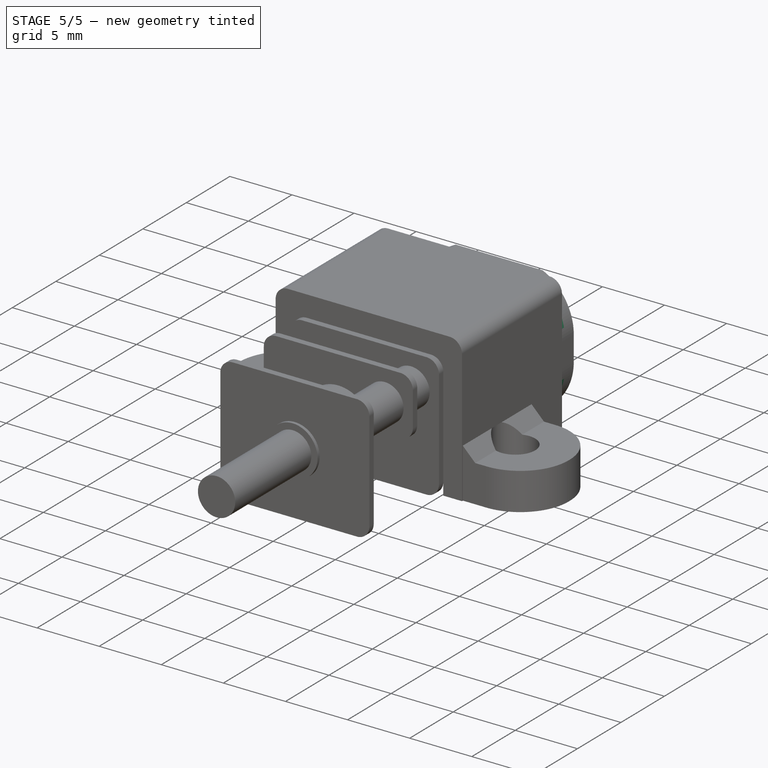
[diagram: stage 5 of 5 — iso view after this stage's code; geometry added in this stage tinted green]
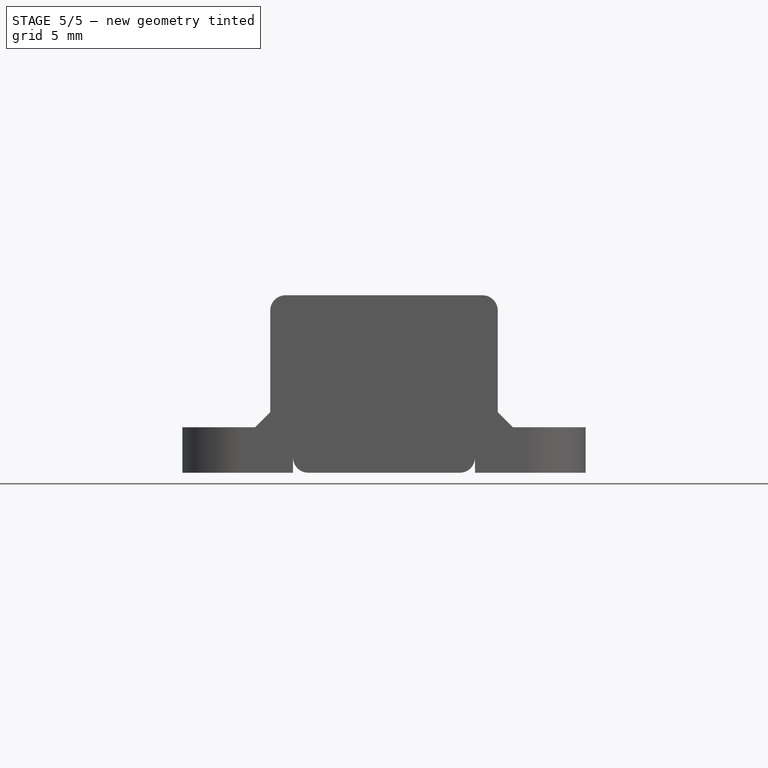
[diagram: stage 5 of 5 — front view after this stage's code; geometry added in this stage tinted green]
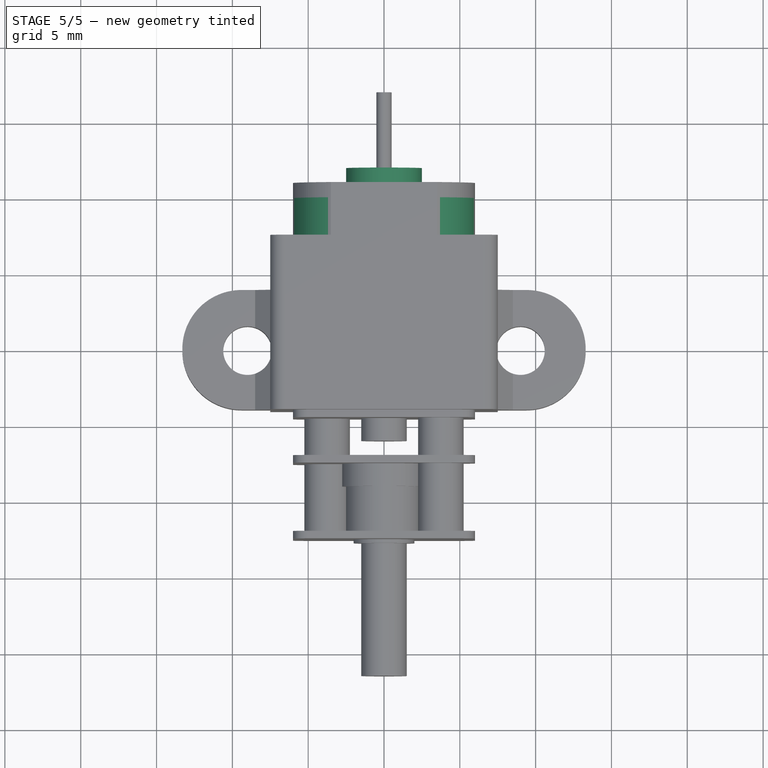
[diagram: stage 5 of 5 — top view after this stage's code; geometry added in this stage tinted green]
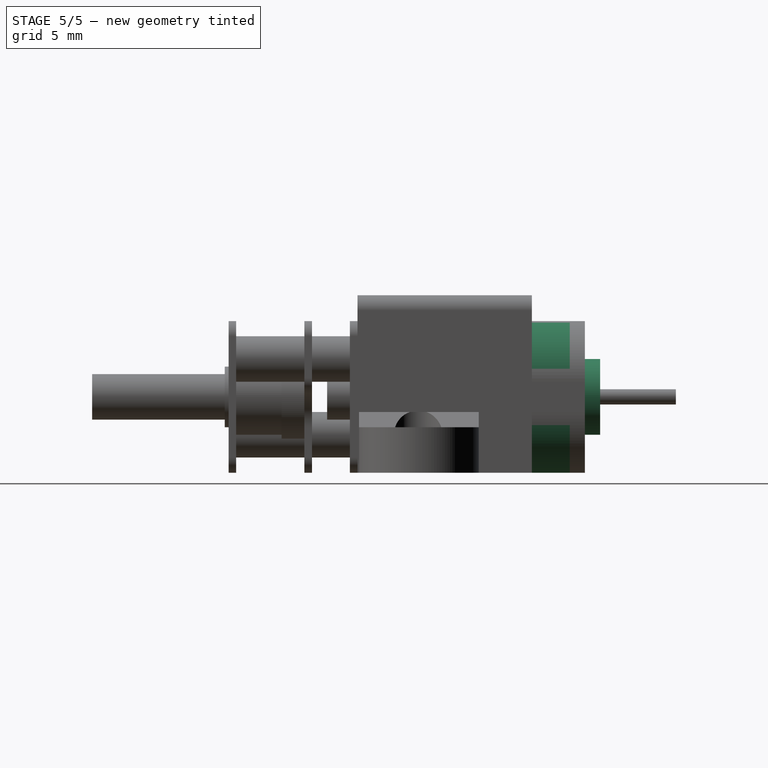
[diagram: stage 5 of 5 — right view after this stage's code; geometry added in this stage tinted green]
FEATURE [Sketcher::SketchObject] Sketch
  FullyConstrained = true
  MapMode = 5
  Placement = pos=(0,0,0) rot=(1,0,0;1.5708rad)
  Support = -> [XZ_Plane]
  sketch-geometry (12):
    g0: LineSegment StartX=-3.5 StartY=5 StartZ=0 EndX=3.5 EndY=5 EndZ=0
    g1: LineSegment StartX=-3.5 StartY=-5 StartZ=0 EndX=3.5 EndY=-5 EndZ=0
    g2: LineSegment StartX=6 StartY=1 StartZ=0 EndX=6 EndY=-1 EndZ=0
    g3: LineSegment StartX=-6 StartY=1 StartZ=0 EndX=-6 EndY=-1 EndZ=0
    g4: LineSegment StartX=0 StartY=0 StartZ=0 EndX=-6 EndY=0 EndZ=0
    g5: LineSegment StartX=0 StartY=0 StartZ=0 EndX=6 EndY=0 EndZ=0
    g6: LineSegment StartX=0 StartY=0 StartZ=0 EndX=0 EndY=5 EndZ=0
    g7: LineSegment StartX=0 StartY=0 StartZ=0 EndX=0 EndY=-5 EndZ=0
    g8: ArcOfCircle CenterX=-1.55001 CenterY=1.00001 CenterZ=0 NormalX=0 NormalY=0 NormalZ=1 AngleXU=0 Radius=4.44999 StartAngle=2.02439 EndAngle=3.14159
    g9: ArcOfCircle CenterX=1.55001 CenterY=1.00001 CenterZ=0 NormalX=0 NormalY=0 NormalZ=1 AngleXU=0 Radius=4.44999 StartAngle=6.28318 EndAngle=7.40039
    g10: ArcOfCircle CenterX=-1.55001 CenterY=-1.00001 CenterZ=0 NormalX=0 NormalY=0 NormalZ=1 AngleXU=0 Radius=4.44999 StartAngle=3.14159 EndAngle=4.25879
    g11: ArcOfCircle CenterX=1.55001 CenterY=-1.00001 CenterZ=0 NormalX=0 NormalY=0 NormalZ=1 AngleXU=0 Radius=4.44999 StartAngle=5.16598 EndAngle=6.28319
  constraints (36):
    c: Horizontal(g0)
    c: Horizontal(g1)
    c: Vertical(g2)
    c: Vertical(g3)
    c: Equal(g0,g1)
    c: Equal(g3,g2)
    c: Coincident(g4,g-1)
    c: Coincident(g5,g-1)
    c: Horizontal(g5)
    c: Coincident(g6,g-1)
    c: Coincident(g7,g-1)
    c: Vertical(g7)
    c: Vertical(g6)
    c: Horizontal(g4)
    c: Equal(g4,g5)
    c: Equal(g7,g6)
    c: Symmetric(g3,g3,g4)
    c: Symmetric(g2,g2,g5)
    c: Symmetric(g1,g1,g7)
    c: Symmetric(g0,g0,g6)
    c: Coincident(g8,g3)
    c: Coincident(g8,g0)
    c: Tangent(g8,g3)
    c: Coincident(g9,g0)
    c: Coincident(g9,g2)
    c: Coincident(g10,g3)
    c: Coincident(g10,g1)
    c: Coincident(g11,g1)
    c: Coincident(g11,g2)
    c: Tangent(g3,g10)
    c: Tangent(g9,g2)
    c: Tangent(g11,g2)
    c: DistanceY(g1,g0) = 10
    c: Distance(g2) = 2
    c: DistanceX(g3,g2) = 12
    c: DistanceX(g0,g0) = 7
FEATURE [PartDesign::Pad] Pad
  Direction = (1,1,1)
  Length = 14
  Length2 = 100
  Placement = pos=(0,0,0) rot=(1,0,0;1.5708rad)
  Profile = -> Sketch
  Type = 0
FEATURE [Sketcher::SketchObject] Sketch001
  FullyConstrained = true
  MapMode = 5
  Placement = pos=(0,0,0) rot=(1,0,0;1.5708rad)
  Support = -> [XZ_Plane]
  sketch-geometry (12):
    g0: LineSegment StartX=-3 StartY=4.5 StartZ=0 EndX=3 EndY=4.5 EndZ=0
    g1: LineSegment StartX=5.5 StartY=1 StartZ=0 EndX=5.5 EndY=-1 EndZ=0
    g2: LineSegment StartX=-3 StartY=-4.5 StartZ=0 EndX=3 EndY=-4.5 EndZ=0
    g3: LineSegment StartX=-5.5 StartY=-1 StartZ=0 EndX=-5.5 EndY=1 EndZ=0
    g4: LineSegment StartX=0 StartY=0 StartZ=0 EndX=0 EndY=4.5 EndZ=0
    g5: LineSegment StartX=0 StartY=0 StartZ=0 EndX=5.5 EndY=0 EndZ=0
    g6: LineSegment StartX=0 StartY=0 StartZ=0 EndX=0 EndY=-4.5 EndZ=0
    g7: LineSegment StartX=0 StartY=0 StartZ=0 EndX=-5.5 EndY=0 EndZ=0
    g8: ArcOfCircle CenterX=-1.79999 CenterY=0.999993 CenterZ=0 NormalX=0 NormalY=0 NormalZ=1 AngleXU=0 Radius=3.70001 StartAngle=1.9011 EndAngle=3.14159
    g9: ArcOfCircle CenterX=1.79999 CenterY=0.999993 CenterZ=0 NormalX=0 NormalY=0 NormalZ=1 AngleXU=0 Radius=3.70001 StartAngle=1.80818e-06 EndAngle=1.2405
    g10: ArcOfCircle CenterX=1.79999 CenterY=-0.999993 CenterZ=0 NormalX=0 NormalY=0 NormalZ=1 AngleXU=0 Radius=3.70001 StartAngle=5.04269 EndAngle=6.28318
    g11: ArcOfCircle CenterX=-1.79999 CenterY=-0.999993 CenterZ=0 NormalX=0 NormalY=0 NormalZ=1 AngleXU=0 Radius=3.70001 StartAngle=3.14159 EndAngle=4.38209
  constraints (36):
    c: Vertical(g3)
    c: Vertical(g1)
    c: Horizontal(g0)
    c: Horizontal(g2)
    c: Coincident(g4,g-1)
    c: Coincident(g5,g-1)
    c: Coincident(g6,g-1)
    c: Coincident(g7,g-1)
    c: Horizontal(g7)
    c: Horizontal(g5)
    c: Vertical(g4)
    c: Vertical(g6)
    c: Equal(g3,g1)
    c: Equal(g0,g2)
    c: Equal(g6,g4)
    c: Equal(g5,g7)
    c: Symmetric(g0,g0,g4)
    c: Symmetric(g1,g1,g5)
    c: Symmetric(g3,g3,g7)
    c: Symmetric(g2,g2,g6)
    c: Coincident(g8,g3)
    c: Coincident(g8,g0)
    c: Coincident(g9,g0)
    c: Coincident(g9,g1)
    c: Coincident(g10,g1)
    c: Coincident(g10,g2)
    c: Coincident(g11,g3)
    c: Coincident(g11,g2)
    c: Tangent(g8,g3)
    c: Tangent(g11,g3)
    c: Tangent(g10,g1)
    c: Tangent(g9,g1)
    c: Distance(g0) = 6
    c: Distance(g1) = 2
    c: DistanceX(g3,g1) = 11
    c: DistanceY(g2,g0) = 9
FEATURE [PartDesign::Pocket] Pocket
  BaseFeature = -> Pad
  Length = 13.5
  Length2 = 100
  Placement = pos=(0,0,0) rot=(1,0,0;1.5708rad)
  Profile = -> Sketch001
  Reversed = true
  Type = 0
FEATURE [Sketcher::SketchObject] Sketch002
  FullyConstrained = true
  MapMode = 5
  Placement = pos=(0,0,0) rot=(1,0,0;1.5708rad)
  Support = -> [XZ_Plane]
  sketch-geometry (1):
    g0: Circle CenterX=0 CenterY=0 CenterZ=0 NormalX=0 NormalY=0 NormalZ=1 AngleXU=0 Radius=1.5
  constraints (2):
    c: Coincident(g0,g-1)
    c: Diameter(g0) = 3
FEATURE [PartDesign::Pocket] Pocket001
  BaseFeature = -> Pocket
  Length = 5
  Length2 = 100
  Placement = pos=(0,0,0) rot=(1,0,0;1.5708rad)
  Profile = -> Sketch002
  Reversed = true
  Type = 1
FEATURE [Sketcher::SketchObject] Sketch004
  FullyConstrained = true
  MapMode = 5
  Placement = pos=(0,1,-4e-16) rot=(-1,0,0;1.5708rad)
  Support = -> [Pad001]
  sketch-geometry (1):
    g0: Circle CenterX=0 CenterY=0 CenterZ=0 NormalX=0 NormalY=0 NormalZ=1 AngleXU=0 Radius=2.5
  constraints (2):
    c: Coincident(g0,g-1)
    c: Diameter(g0) = 5
FEATURE [PartDesign::Pad] Pad002
  BaseFeature = -> Pad001
  Direction = (1,1,1)
  Length = 1
  Length2 = 100
  Placement = pos=(0,0,0) rot=(1,0,0;1.5708rad)
  Profile = -> Sketch004
  Type = 0
FEATURE [Sketcher::SketchObject] Sketch005
  FullyConstrained = true
  MapMode = 5
  Placement = pos=(0,2,-1.8e-15) rot=(-1,0,0;1.5708rad)
  Support = -> [Pad002]
  sketch-geometry (1):
    g0: Circle CenterX=0 CenterY=0 CenterZ=0 NormalX=0 NormalY=0 NormalZ=1 AngleXU=0 Radius=1.5
  constraints (2):
    c: Coincident(g0,g-1)
    c: Diameter(g0) = 3
FEATURE [PartDesign::Pocket] Pocket002
  BaseFeature = -> Pad002
  Length = 5
  Length2 = 100
  Placement = pos=(0,0,0) rot=(1,0,0;1.5708rad)
  Profile = -> Sketch005
  Type = 1
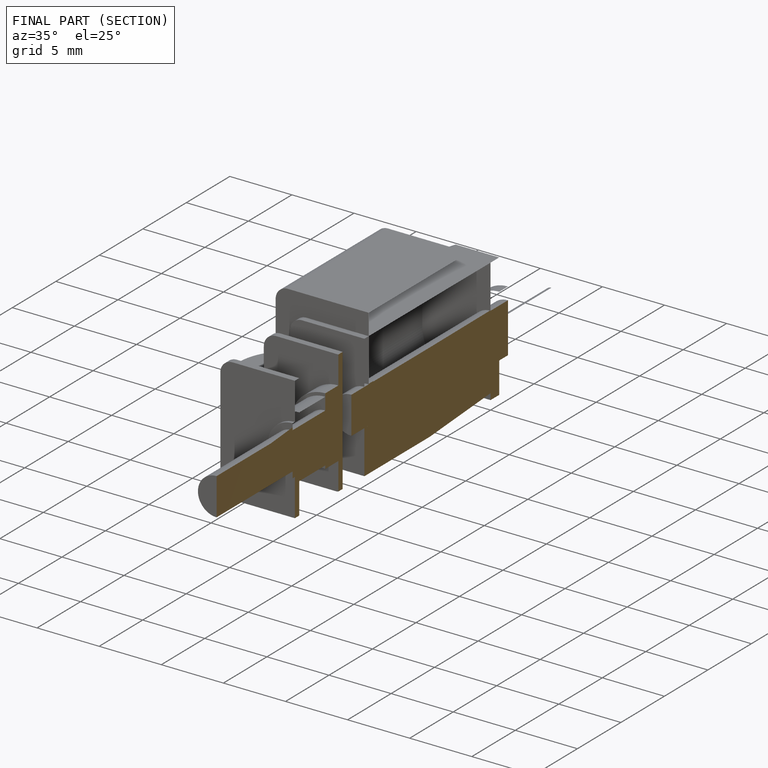
[diagram: finished part — half-section view (interior)]
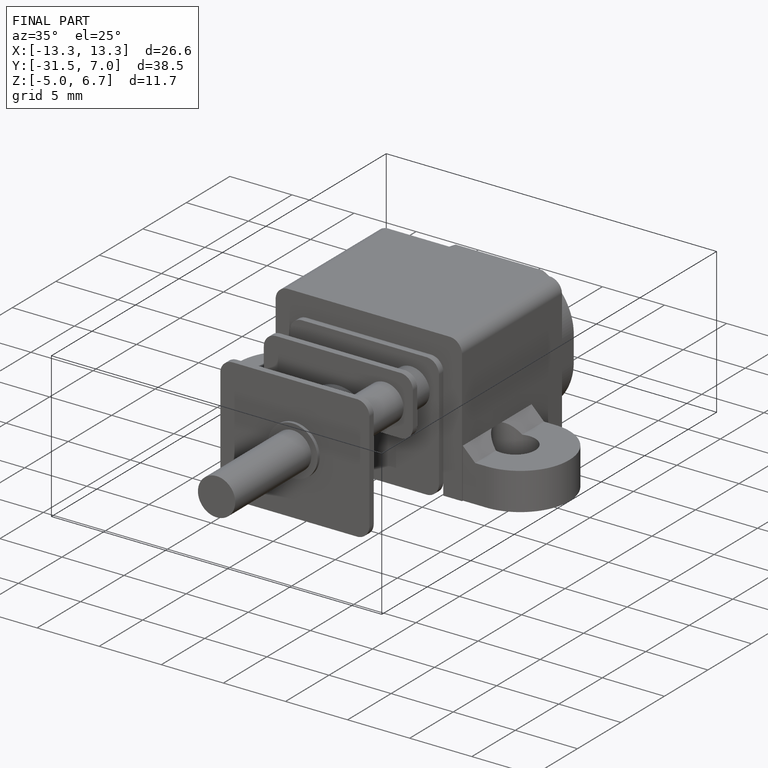
[diagram: finished part — iso view with bounding-box wireframe]
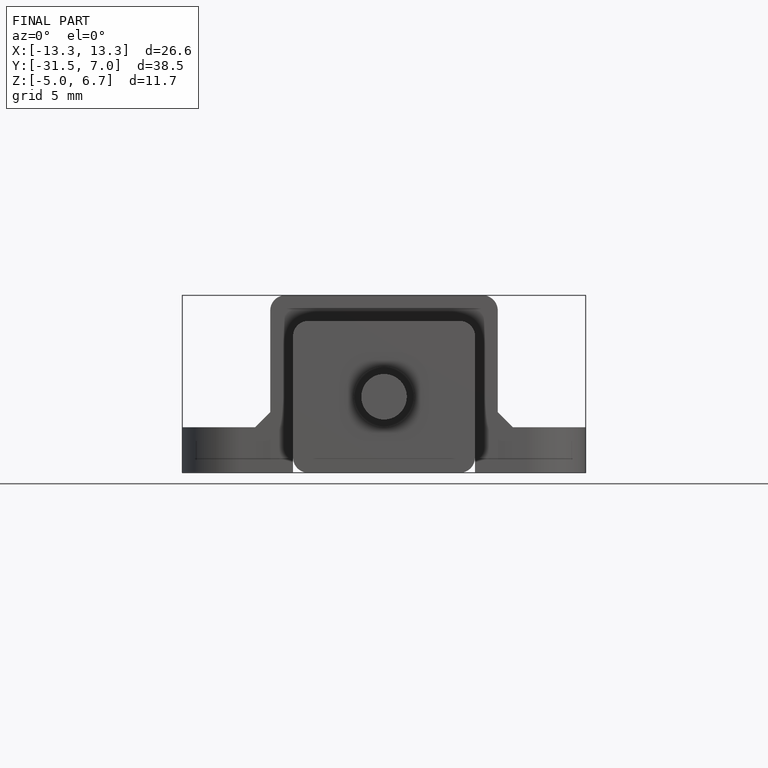
[diagram: finished part — front view with bounding-box wireframe]
